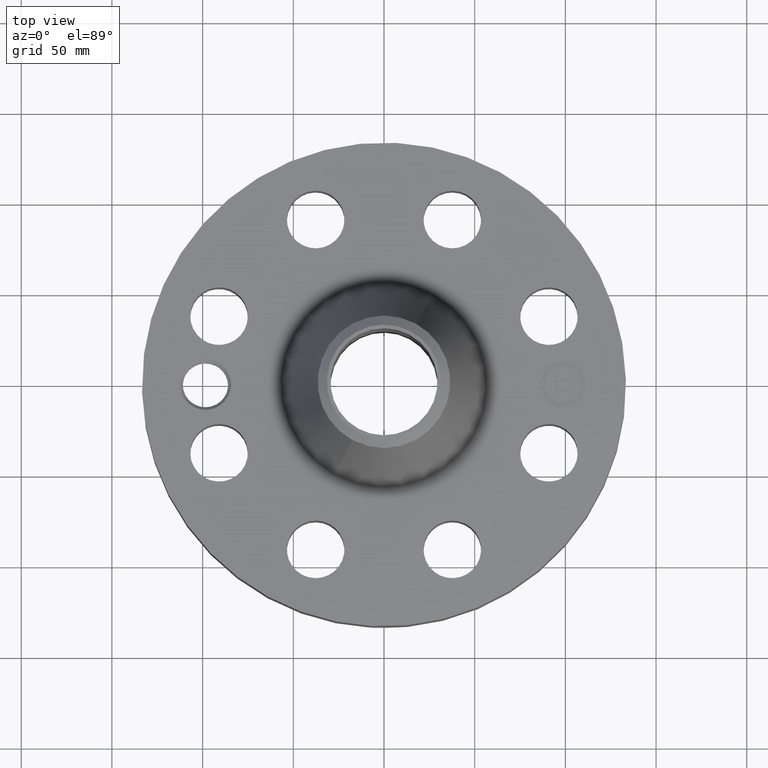
[diagram: clean part render]
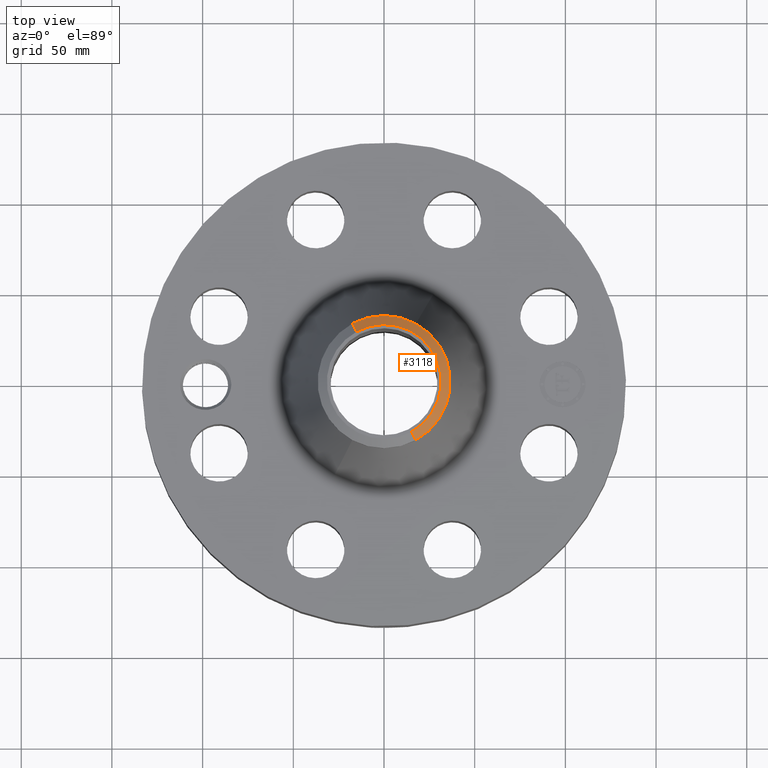
[diagram: same view with one face highlighted and labeled with its STEP entity id]
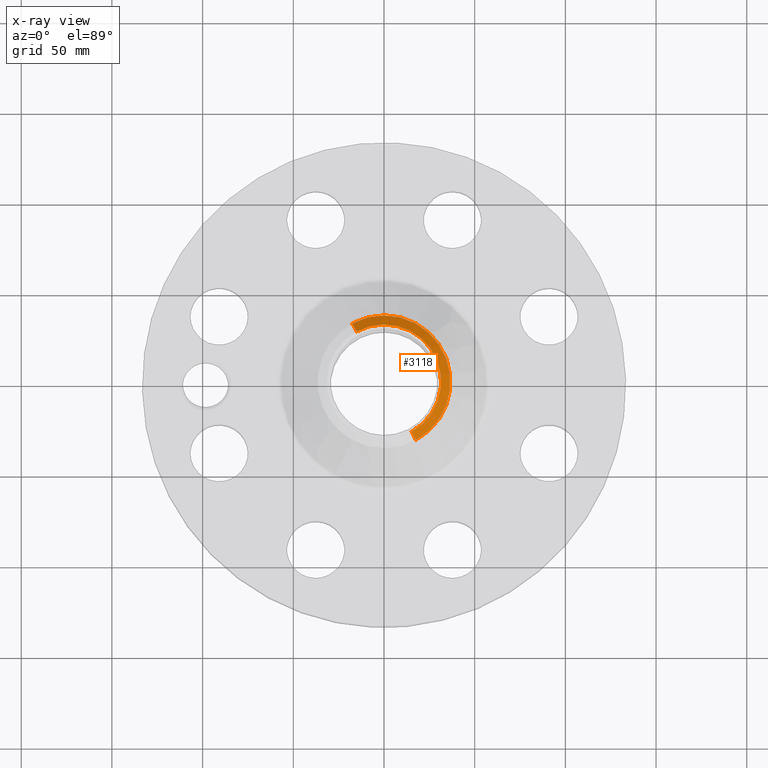
[diagram: x-ray of the same camera — body ghosted, the highlighted face saturated]
A machine part, top view. The second image highlights one B-rep face of the part: STEP entity #3118.
The next image is the same camera in x-ray: the body ghosted, the highlighted face saturated — about 0% of this face is hidden behind the body in this view.
In plain terms, the highlighted conical surface has half-angle 52.5 deg.
Its self-contained STEP definition (entity closure, byte-faithful):
#2255=AXIS2_PLACEMENT_3D('Circle Axis2P3D',#2253,#2254,$) ;
#3063=AXIS2_PLACEMENT_3D('Cone Axis2P3D',#3060,#3061,#3062) ;
#3101=AXIS2_PLACEMENT_3D('Circle Axis2P3D',#3099,#3100,$) ;
#3108=AXIS2_PLACEMENT_3D('Circle Axis2P3D',#3106,#3107,$) ;
#2253=CARTESIAN_POINT('Axis2P3D Location',(0.,0.,5.87000000002)) ;
#2257=CARTESIAN_POINT('Vertex',(0.594602805501,-1.08841313476,5.87000000002)) ;
#2259=CARTESIAN_POINT('Vertex',(-0.594602805501,1.08841313476,5.87000000002)) ;
#3060=CARTESIAN_POINT('Axis2P3D Location',(0.,0.,5.87000000002)) ;
#3065=CARTESIAN_POINT('Line Origine',(0.642487790547,-1.17606601195,5.79335944088)) ;
#3069=CARTESIAN_POINT('Vertex',(0.690372775593,-1.26371888913,5.71671888174)) ;
#3072=CARTESIAN_POINT('Line Origine',(-0.642487790547,1.17606601195,5.79335944088)) ;
#3076=CARTESIAN_POINT('Vertex',(-0.690372775593,1.26371888913,5.71671888174)) ;
#3099=CARTESIAN_POINT('Axis2P3D Location',(0.,0.,5.71671888174)) ;
#3103=CARTESIAN_POINT('Vertex',(0.690372775593,1.26371888913,5.71671888174)) ;
#3106=CARTESIAN_POINT('Axis2P3D Location',(0.,0.,5.71671888174)) ;
#2254=DIRECTION('Axis2P3D Direction',(0.,0.,-0.0393700787402)) ;
#3061=DIRECTION('Axis2P3D Direction',(-0.,-0.,-0.0393700787402)) ;
#3062=DIRECTION('Axis2P3D XDirection',(-0.0188750212049,0.0345504945626,0.)) ;
#3066=DIRECTION('Vector Direction',(0.014974561121,-0.02741075027,-0.023966985394)) ;
#3073=DIRECTION('Vector Direction',(-0.014974561121,0.02741075027,-0.023966985394)) ;
#3100=DIRECTION('Axis2P3D Direction',(0.,0.,-0.0393700787402)) ;
#3107=DIRECTION('Axis2P3D Direction',(0.,0.,-0.0393700787402)) ;
#3067=VECTOR('Line Direction',#3066,0.0393700787402) ;
#3074=VECTOR('Line Direction',#3073,0.0393700787402) ;
#3112=ORIENTED_EDGE('',*,*,#3078,.F.) ;
#3113=ORIENTED_EDGE('',*,*,#2261,.F.) ;
#3114=ORIENTED_EDGE('',*,*,#3071,.T.) ;
#3115=ORIENTED_EDGE('',*,*,#3105,.T.) ;
#3116=ORIENTED_EDGE('',*,*,#3110,.F.) ;
#3118=ADVANCED_FACE('PartBody',(#3117),#3064,.T.) ;
#2256=CIRCLE('generated circle',#2255,1.24024015748) ;
#3102=CIRCLE('generated circle',#3101,1.44000000001) ;
#3109=CIRCLE('generated circle',#3108,1.44000000001) ;
#3064=CONICAL_SURFACE('Cone',#3063,1.24024015748,0.916297857297) ;
#2261=EDGE_CURVE('',#2258,#2260,#2256,.F.) ;
#3071=EDGE_CURVE('',#2258,#3070,#3068,.T.) ;
#3078=EDGE_CURVE('',#2260,#3077,#3075,.T.) ;
#3105=EDGE_CURVE('',#3070,#3104,#3102,.F.) ;
#3110=EDGE_CURVE('',#3077,#3104,#3109,.T.) ;
#3111=EDGE_LOOP('',(#3112,#3113,#3114,#3115,#3116)) ;
#3117=FACE_OUTER_BOUND('',#3111,.T.) ;
#3068=LINE('Line',#3065,#3067) ;
#3075=LINE('Line',#3072,#3074) ;
#2258=VERTEX_POINT('',#2257) ;
#2260=VERTEX_POINT('',#2259) ;
#3070=VERTEX_POINT('',#3069) ;
#3077=VERTEX_POINT('',#3076) ;
#3104=VERTEX_POINT('',#3103) ;